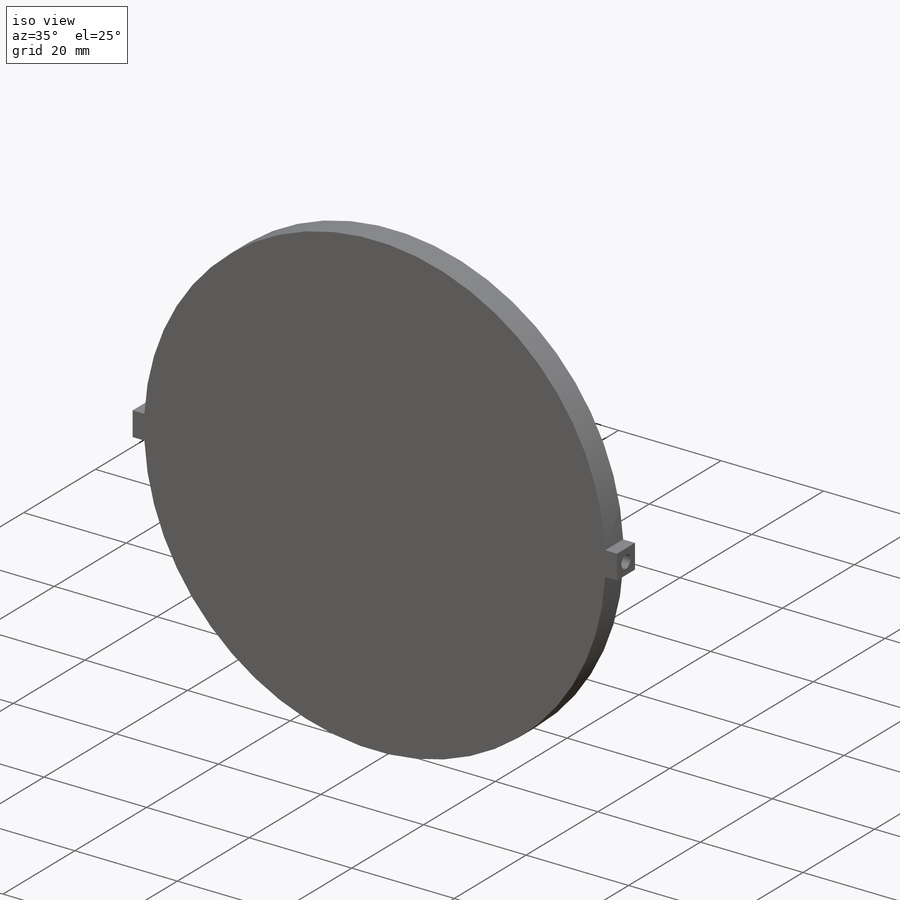
[diagram: iso view]
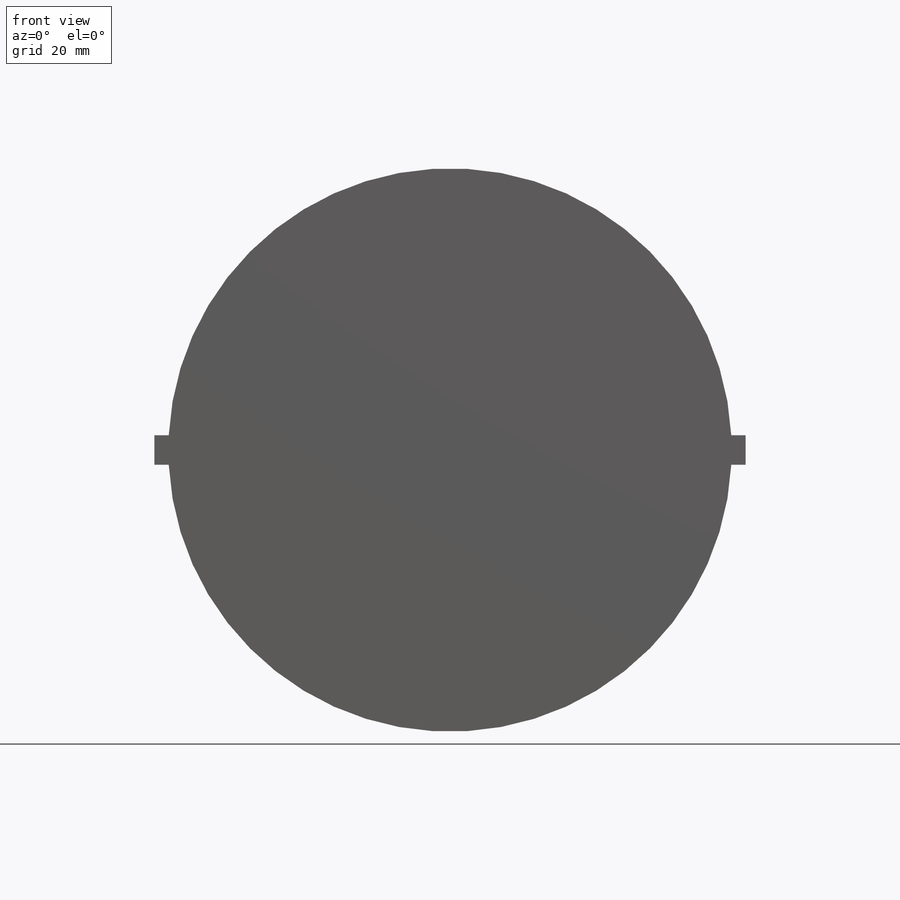
[diagram: front view]
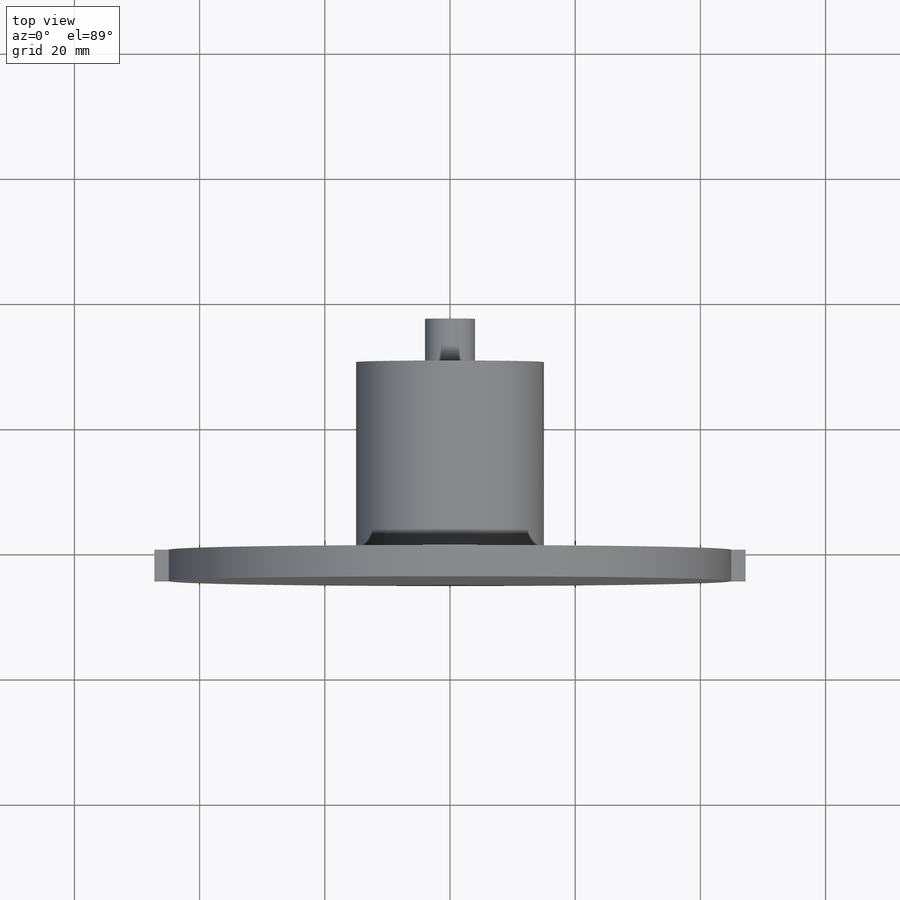
[diagram: top view]
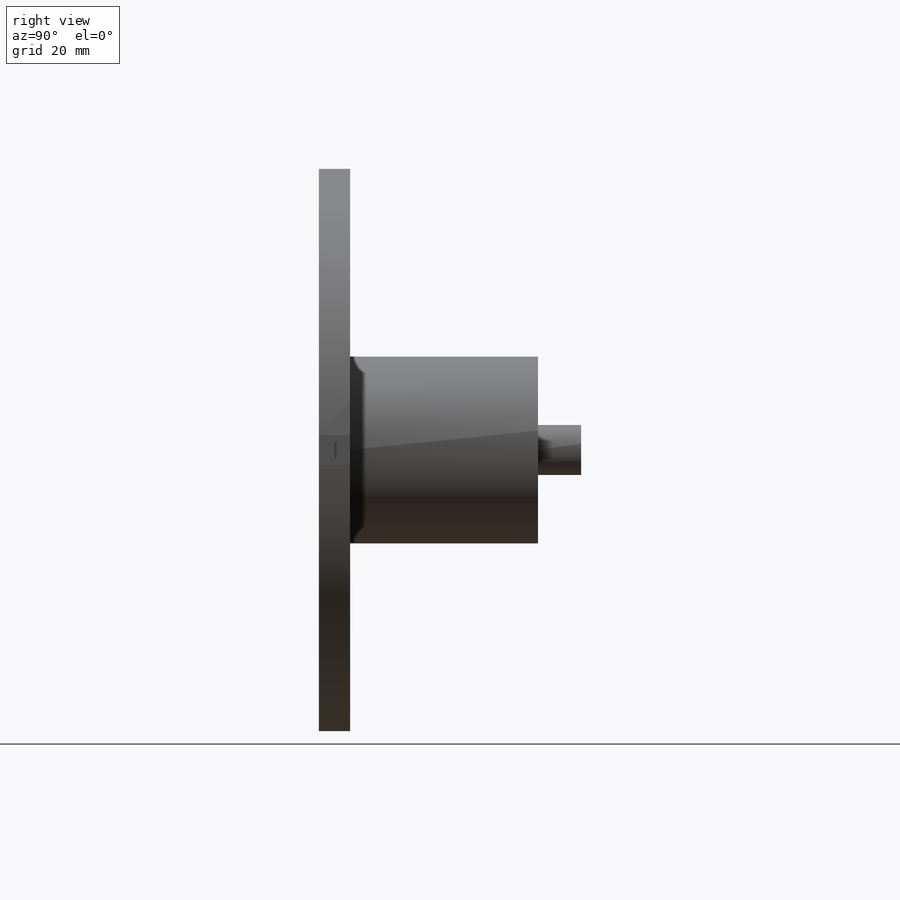
[diagram: right view]
SOLIDWORKS PART (.sldprt)
format: sldprt  version: not decoded by parser v0  size: 150,528 bytes
history: native  units: mm
features: sketch x5, extrude x3, cut_extrude x2, material x1 (+12 scaffold rows collapsed)
feature tree (23):
  scaffold x12  (default folders/planes/origin — collapsed)
  material  "Material <not specified>"
  sketch  "Sketch5"  dims[D1=~46.561684mm]
  extrude  "Boss-Extrude2"  Depth=5mm
  sketch  "Sketch6"  dims[D1=30.0mm]
  extrude  "Boss-Extrude3"  Depth=30mm
  sketch  "Sketch7"  dims[D1=8.0mm]
  extrude  "Boss-Extrude4"  Depth=6.9mm
  sketch  "Sketch8"  dims[D1=2.5mm]
  cut_extrude  "Cut-Extrude1"  Depth=5mm
  sketch  "Sketch9"  dims[D1=2.5mm]
  cut_extrude  "Cut-Extrude2"  Depth=5mm
decode coverage: 10 of 10 modeling features carry decoded parameters
note: ~ marks probable driven/reference dimensions
note: suppression state not decoded; provenance and decode notes live in map.json
